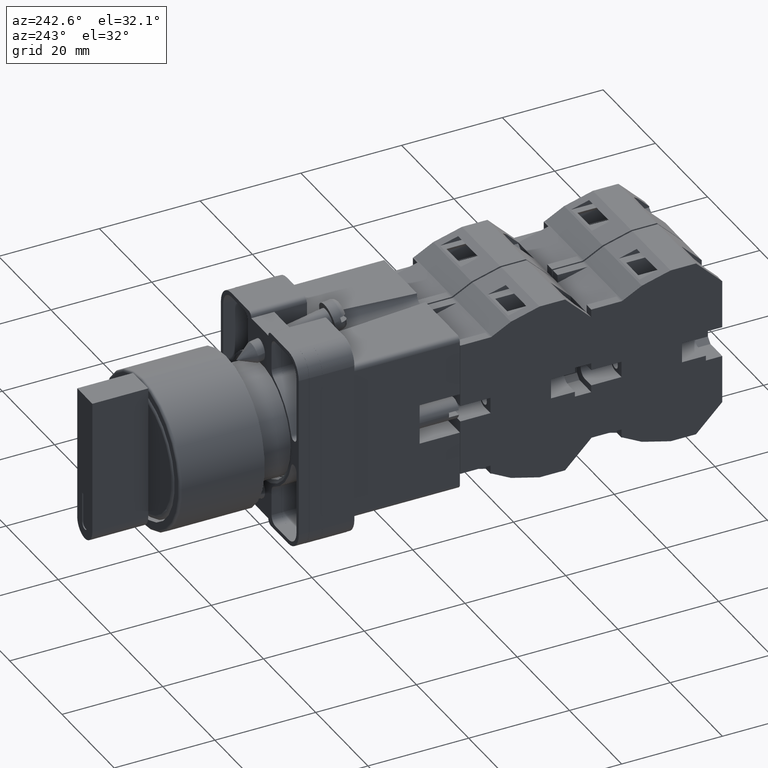
[diagram: clean part render]
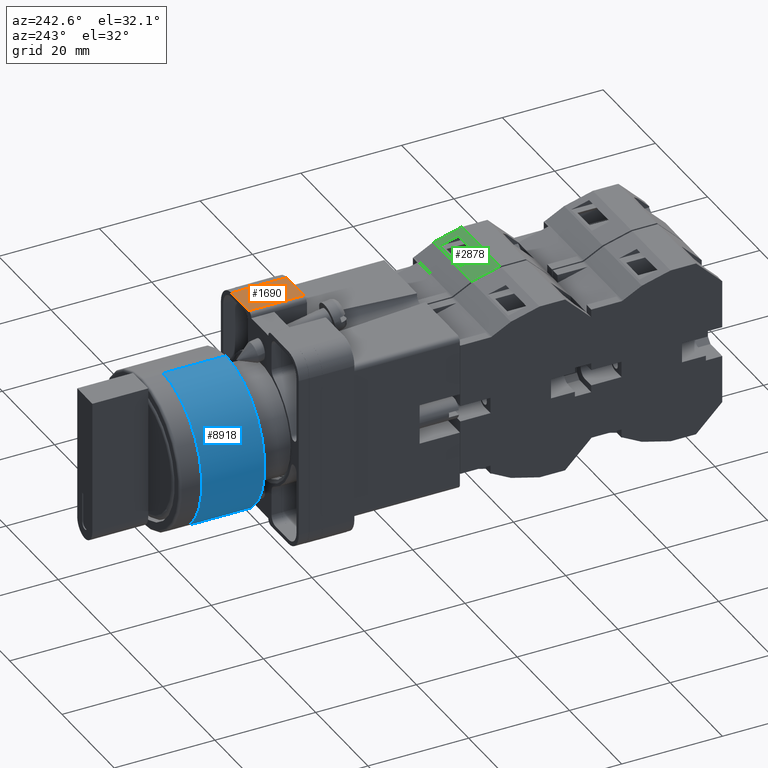
[diagram: same view with three faces highlighted in distinct colors, each labeled with its STEP entity id]
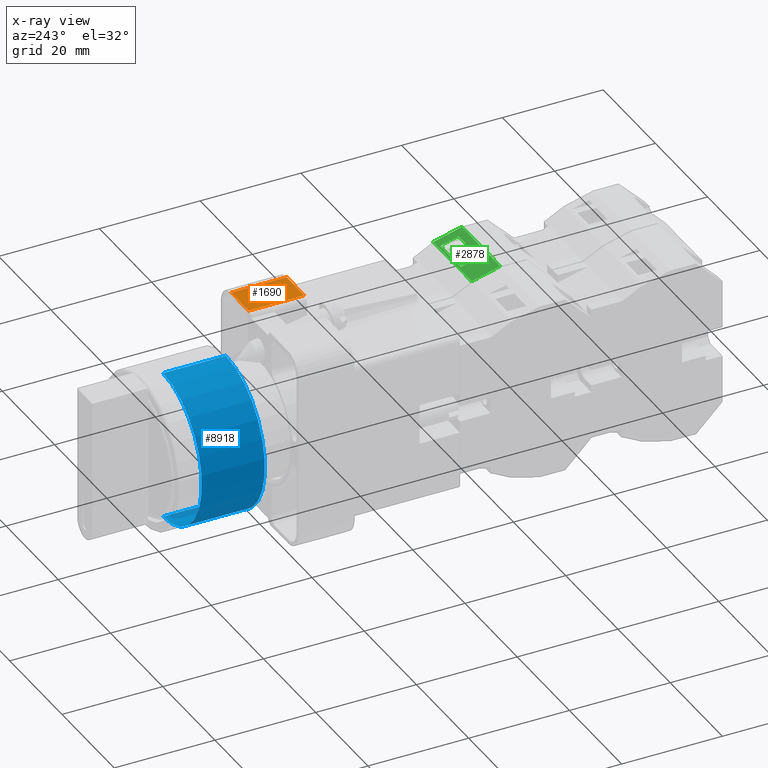
[diagram: x-ray of the same camera — body ghosted, the three highlighted faces saturated]
A machine part, auxiliary view with three faces highlighted in distinct colors.
The next image is the same camera in x-ray (body ghosted, the three faces saturated) — at least one of them is partly hidden behind the body in this view.
Their STEP definitions:

[orange] entity #1690 — the highlighted planar face has unit normal (0, 0, -1).
#143 = CARTESIAN_POINT ( 'NONE',  ( 0.4312471367406947600, -0.7873999999999993200, -0.4035433070866141200 ) ) ;
#153 = EDGE_CURVE ( 'NONE', #15002, #5637, #4546, .T. ) ;
#195 = LINE ( 'NONE', #5597, #14948 ) ;
#620 = DIRECTION ( 'NONE',  ( -1.000000000000000000, 0.0000000000000000000, 0.0000000000000000000 ) ) ;
#684 = CARTESIAN_POINT ( 'NONE',  ( 0.4291329999999932100, -0.7873999999999972100, -0.4350393700787401100 ) ) ;
#799 = DIRECTION ( 'NONE',  ( -0.0000000000000000000, -0.0000000000000000000, 1.000000000000000000 ) ) ;
#855 = VECTOR ( 'NONE', #4040, 39.37007874015748100 ) ;
#1024 = DIRECTION ( 'NONE',  ( 1.000000000000000000, 0.0000000000000000000, 0.0000000000000000000 ) ) ;
#1203 = ORIENTED_EDGE ( 'NONE', *, *, #153, .T. ) ;
#1320 = ORIENTED_EDGE ( 'NONE', *, *, #2529, .T. ) ;
#1690 = ADVANCED_FACE ( 'NONE', ( #11272 ), #3531, .F. ) ;
#1828 = DIRECTION ( 'NONE',  ( -0.0000000000000000000, -0.0000000000000000000, 1.000000000000000000 ) ) ;
#1859 = CARTESIAN_POINT ( 'NONE',  ( 0.0000000000000000000, -0.7873999999999993200, -0.08070866141732283000 ) ) ;
#2056 = EDGE_CURVE ( 'NONE', #16298, #15311, #2364, .T. ) ;
#2115 = CARTESIAN_POINT ( 'NONE',  ( 0.4291329999999997600, -0.7873999999999972100, -0.08070866141732283000 ) ) ;
#2364 = LINE ( 'NONE', #12404, #16654 ) ;
#2484 = ORIENTED_EDGE ( 'NONE', *, *, #17266, .F. ) ;
#2529 = EDGE_CURVE ( 'NONE', #17647, #14209, #3013, .T. ) ;
#2748 = DIRECTION ( 'NONE',  ( 0.0000000000000000000, 0.0000000000000000000, 1.000000000000000000 ) ) ;
#3013 = LINE ( 'NONE', #10140, #17277 ) ;
#3198 = CARTESIAN_POINT ( 'NONE',  ( 0.4306202253755368500, -0.7873999999999993200, -0.1830708661417322600 ) ) ;
#3510 = CARTESIAN_POINT ( 'NONE',  ( 0.4306202253755368500, -0.7873999999999993200, -0.1830708661417322600 ) ) ;
#3531 = PLANE ( 'NONE',  #13448 ) ;
#3800 = CARTESIAN_POINT ( 'NONE',  ( 0.1673224999999976000, -0.7873999999999972100, 0.0000000000000000000 ) ) ;
#4040 = DIRECTION ( 'NONE',  ( 1.000000000000000000, 0.0000000000000000000, 0.0000000000000000000 ) ) ;
#4095 = VECTOR ( 'NONE', #799, 39.37007874015748100 ) ;
#4426 = VERTEX_POINT ( 'NONE', #3510 ) ;
#4546 = LINE ( 'NONE', #684, #4095 ) ;
#4866 = DIRECTION ( 'NONE',  ( 0.0000000000000000000, 1.000000000000000000, -0.0000000000000000000 ) ) ;
#4972 = CARTESIAN_POINT ( 'NONE',  ( 0.4291329999999932100, -0.7873999999999972100, -0.4035433070866141200 ) ) ;
#5536 = CARTESIAN_POINT ( 'NONE',  ( 0.4291329999999997600, -0.7873999999999972100, -0.08070866141732283000 ) ) ;
#5597 = CARTESIAN_POINT ( 'NONE',  ( 0.0000000000000000000, -0.7873999999999993200, -0.4035433070866141200 ) ) ;
#5637 = VERTEX_POINT ( 'NONE', #4972 ) ;
#6077 = ORIENTED_EDGE ( 'NONE', *, *, #11263, .T. ) ;
#6209 = CARTESIAN_POINT ( 'NONE',  ( 0.4291329999999997600, -0.7873999999999972100, 0.0000000000000000000 ) ) ;
#6247 = EDGE_CURVE ( 'NONE', #9309, #7745, #14173, .T. ) ;
#6530 = VECTOR ( 'NONE', #15713, 39.37007874015748100 ) ;
#6819 = VECTOR ( 'NONE', #2748, 39.37007874015748100 ) ;
#7068 = ORIENTED_EDGE ( 'NONE', *, *, #2056, .T. ) ;
#7745 = VERTEX_POINT ( 'NONE', #3800 ) ;
#8034 = EDGE_CURVE ( 'NONE', #16298, #16142, #14309, .T. ) ;
#8106 = CARTESIAN_POINT ( 'NONE',  ( 0.4312471367406947600, -0.7873999999999993200, -0.1830708661417322600 ) ) ;
#8265 = LINE ( 'NONE', #13688, #855 ) ;
#8532 = ORIENTED_EDGE ( 'NONE', *, *, #12149, .T. ) ;
#8717 = VECTOR ( 'NONE', #1024, 39.37007874015748100 ) ;
#8982 = LINE ( 'NONE', #3198, #15887 ) ;
#9309 = VERTEX_POINT ( 'NONE', #15659 ) ;
#10140 = CARTESIAN_POINT ( 'NONE',  ( 0.4312471367406947600, -0.7873999999999993200, -0.4035433070866141200 ) ) ;
#10779 = ORIENTED_EDGE ( 'NONE', *, *, #6247, .F. ) ;
#11263 = EDGE_CURVE ( 'NONE', #15311, #7745, #17769, .T. ) ;
#11272 = FACE_OUTER_BOUND ( 'NONE', #17106, .T. ) ;
#11467 = DIRECTION ( 'NONE',  ( -0.0000000000000000000, -0.0000000000000000000, 1.000000000000000000 ) ) ;
#12149 = EDGE_CURVE ( 'NONE', #4426, #16142, #8982, .T. ) ;
#12389 = CARTESIAN_POINT ( 'NONE',  ( 0.1673224999999976000, -0.7873999999999972100, -0.08070866141732283000 ) ) ;
#12404 = CARTESIAN_POINT ( 'NONE',  ( 0.4291329999999997600, -0.7873999999999972100, -0.08070866141732283000 ) ) ;
#13382 = ORIENTED_EDGE ( 'NONE', *, *, #13389, .T. ) ;
#13389 = EDGE_CURVE ( 'NONE', #5637, #17647, #195, .T. ) ;
#13448 = AXIS2_PLACEMENT_3D ( 'NONE', #2115, #4866, #16344 ) ;
#13505 = CARTESIAN_POINT ( 'NONE',  ( 0.0000000000000000000, -0.7873999999999993200, -0.1830708661417322600 ) ) ;
#13688 = CARTESIAN_POINT ( 'NONE',  ( 0.1673224999999976000, -0.7873999999999972100, -0.4350393700787401100 ) ) ;
#13689 = DIRECTION ( 'NONE',  ( 0.0000000000000000000, 0.0000000000000000000, 1.000000000000000000 ) ) ;
#14100 = VECTOR ( 'NONE', #620, 39.37007874015748100 ) ;
#14173 = LINE ( 'NONE', #12389, #6819 ) ;
#14209 = VERTEX_POINT ( 'NONE', #8106 ) ;
#14309 = LINE ( 'NONE', #1859, #6530 ) ;
#14319 = ORIENTED_EDGE ( 'NONE', *, *, #17337, .T. ) ;
#14397 = CARTESIAN_POINT ( 'NONE',  ( 0.4291329999999997600, -0.7873999999999972100, 0.0000000000000000000 ) ) ;
#14948 = VECTOR ( 'NONE', #16644, 39.37007874015748100 ) ;
#14992 = CARTESIAN_POINT ( 'NONE',  ( 0.4291329999999932100, -0.7873999999999972100, -0.4350393700787401100 ) ) ;
#15002 = VERTEX_POINT ( 'NONE', #14992 ) ;
#15311 = VERTEX_POINT ( 'NONE', #14397 ) ;
#15659 = CARTESIAN_POINT ( 'NONE',  ( 0.1673224999999976000, -0.7873999999999961000, -0.4350393700787401100 ) ) ;
#15713 = DIRECTION ( 'NONE',  ( 1.000000000000000000, 0.0000000000000000000, 0.0000000000000000000 ) ) ;
#15887 = VECTOR ( 'NONE', #11467, 39.37007874015748100 ) ;
#16051 = LINE ( 'NONE', #13505, #8717 ) ;
#16142 = VERTEX_POINT ( 'NONE', #17613 ) ;
#16298 = VERTEX_POINT ( 'NONE', #5536 ) ;
#16344 = DIRECTION ( 'NONE',  ( 0.0000000000000000000, 0.0000000000000000000, 1.000000000000000000 ) ) ;
#16644 = DIRECTION ( 'NONE',  ( 1.000000000000000000, 0.0000000000000000000, 0.0000000000000000000 ) ) ;
#16654 = VECTOR ( 'NONE', #13689, 39.37007874015748100 ) ;
#17106 = EDGE_LOOP ( 'NONE', ( #6077, #10779, #14319, #1203, #13382, #1320, #2484, #8532, #17483, #7068 ) ) ;
#17266 = EDGE_CURVE ( 'NONE', #4426, #14209, #16051, .T. ) ;
#17277 = VECTOR ( 'NONE', #1828, 39.37007874015748100 ) ;
#17337 = EDGE_CURVE ( 'NONE', #9309, #15002, #8265, .T. ) ;
#17483 = ORIENTED_EDGE ( 'NONE', *, *, #8034, .F. ) ;
#17613 = CARTESIAN_POINT ( 'NONE',  ( 0.4306202253755368500, -0.7873999999999993200, -0.08070866141732283000 ) ) ;
#17647 = VERTEX_POINT ( 'NONE', #143 ) ;
#17769 = LINE ( 'NONE', #6209, #14100 ) ;

[blue] entity #8918 — the highlighted cylindrical surface (partial cylindrical patch) has radius 14.925 mm, axis along (-0, -1, -0).
#420 = VECTOR ( 'NONE', #10999, 39.37007874015748100 ) ;
#498 = ORIENTED_EDGE ( 'NONE', *, *, #17757, .T. ) ;
#596 = CARTESIAN_POINT ( 'NONE',  ( 0.0000000000000000000, 0.9409448818897640000, -0.5875984251968504600 ) ) ;
#856 = LINE ( 'NONE', #13606, #420 ) ;
#951 = ORIENTED_EDGE ( 'NONE', *, *, #12120, .T. ) ;
#1222 = ORIENTED_EDGE ( 'NONE', *, *, #6708, .F. ) ;
#1227 = EDGE_CURVE ( 'NONE', #15399, #12038, #856, .T. ) ;
#1766 = AXIS2_PLACEMENT_3D ( 'NONE', #5934, #15576, #7325 ) ;
#2482 = CARTESIAN_POINT ( 'NONE',  ( 7.196005306013484500E-017, 3.673790347906964000, 0.5875984251968504600 ) ) ;
#3693 = CIRCLE ( 'NONE', #7637, 0.5875984251968504600 ) ;
#5274 = DIRECTION ( 'NONE',  ( -0.0000000000000000000, -1.000000000000000000, -0.0000000000000000000 ) ) ;
#5493 = LINE ( 'NONE', #2482, #16095 ) ;
#5739 = CIRCLE ( 'NONE', #1766, 0.5875984251968504600 ) ;
#5934 = CARTESIAN_POINT ( 'NONE',  ( 0.0000000000000000000, 0.9409448818897640000, 0.0000000000000000000 ) ) ;
#6092 = DIRECTION ( 'NONE',  ( 0.0000000000000000000, 1.000000000000000000, 0.0000000000000000000 ) ) ;
#6326 = ORIENTED_EDGE ( 'NONE', *, *, #1227, .T. ) ;
#6632 = CYLINDRICAL_SURFACE ( 'NONE', #12340, 0.5875984251968504600 ) ;
#6708 = EDGE_CURVE ( 'NONE', #8851, #11276, #5493, .T. ) ;
#7059 = FACE_OUTER_BOUND ( 'NONE', #10789, .T. ) ;
#7325 = DIRECTION ( 'NONE',  ( 0.0000000000000000000, 0.0000000000000000000, -1.000000000000000000 ) ) ;
#7637 = AXIS2_PLACEMENT_3D ( 'NONE', #14362, #6092, #15754 ) ;
#8529 = CARTESIAN_POINT ( 'NONE',  ( 0.0000000000000000000, 0.4484251968503937300, -0.5875984251968504600 ) ) ;
#8851 = VERTEX_POINT ( 'NONE', #11617 ) ;
#8918 = ADVANCED_FACE ( 'NONE', ( #7059 ), #6632, .T. ) ;
#10316 = CARTESIAN_POINT ( 'NONE',  ( 7.196005306013484500E-017, 0.4484251968503937300, 0.5875984251968504600 ) ) ;
#10490 = CARTESIAN_POINT ( 'NONE',  ( 0.0000000000000000000, 3.673790347906964000, 0.0000000000000000000 ) ) ;
#10789 = EDGE_LOOP ( 'NONE', ( #1222, #951, #6326, #498 ) ) ;
#10999 = DIRECTION ( 'NONE',  ( -0.0000000000000000000, -1.000000000000000000, -0.0000000000000000000 ) ) ;
#11276 = VERTEX_POINT ( 'NONE', #10316 ) ;
#11617 = CARTESIAN_POINT ( 'NONE',  ( 7.196005306013484500E-017, 0.9409448818897640000, 0.5875984251968504600 ) ) ;
#11836 = DIRECTION ( 'NONE',  ( -0.0000000000000000000, -1.000000000000000000, -0.0000000000000000000 ) ) ;
#12038 = VERTEX_POINT ( 'NONE', #8529 ) ;
#12120 = EDGE_CURVE ( 'NONE', #8851, #15399, #5739, .T. ) ;
#12340 = AXIS2_PLACEMENT_3D ( 'NONE', #10490, #11836, #14592 ) ;
#13606 = CARTESIAN_POINT ( 'NONE',  ( 0.0000000000000000000, 3.673790347906964000, -0.5875984251968504600 ) ) ;
#14362 = CARTESIAN_POINT ( 'NONE',  ( 0.0000000000000000000, 0.4484251968503937300, 0.0000000000000000000 ) ) ;
#14592 = DIRECTION ( 'NONE',  ( 0.0000000000000000000, 0.0000000000000000000, -1.000000000000000000 ) ) ;
#15399 = VERTEX_POINT ( 'NONE', #596 ) ;
#15576 = DIRECTION ( 'NONE',  ( 0.0000000000000000000, -1.000000000000000000, 0.0000000000000000000 ) ) ;
#15754 = DIRECTION ( 'NONE',  ( 0.0000000000000000000, 0.0000000000000000000, 1.000000000000000000 ) ) ;
#16095 = VECTOR ( 'NONE', #5274, 39.37007874015748100 ) ;
#17757 = EDGE_CURVE ( 'NONE', #12038, #11276, #3693, .T. ) ;

[green] entity #2878 — the highlighted planar face has unit normal (0, -0.2588, -0.9659).
#207 = VECTOR ( 'NONE', #1409, 39.37007874015748100 ) ;
#462 = LINE ( 'NONE', #598, #7463 ) ;
#598 = CARTESIAN_POINT ( 'NONE',  ( 0.1889763779527539600, -0.4977118570381174900, 0.1333614901567568600 ) ) ;
#900 = CARTESIAN_POINT ( 'NONE',  ( -0.3188976377952755800, -0.6995288218689645900, -0.6198296764213121500 ) ) ;
#978 = EDGE_CURVE ( 'NONE', #14622, #8245, #11730, .T. ) ;
#998 = ORIENTED_EDGE ( 'NONE', *, *, #3239, .F. ) ;
#1409 = DIRECTION ( 'NONE',  ( 1.000000000000000000, 0.0000000000000000000, 0.0000000000000000000 ) ) ;
#1698 = ORIENTED_EDGE ( 'NONE', *, *, #3670, .T. ) ;
#2017 = LINE ( 'NONE', #7793, #8971 ) ;
#2028 = CARTESIAN_POINT ( 'NONE',  ( -0.3188976377952755800, -0.6995288218689645900, -0.6198296764213121500 ) ) ;
#2199 = LINE ( 'NONE', #12456, #9150 ) ;
#2243 = DIRECTION ( 'NONE',  ( 0.0000000000000000000, 0.2588190451025187400, 0.9659258262890687600 ) ) ;
#2311 = DIRECTION ( 'NONE',  ( -1.000000000000000000, 0.0000000000000000000, 0.0000000000000000000 ) ) ;
#2350 = CARTESIAN_POINT ( 'NONE',  ( 0.1889763779527539600, -0.6817378047480787700, -0.5534326966078378900 ) ) ;
#2878 = ADVANCED_FACE ( 'NONE', ( #2996, #14020 ), #5525, .F. ) ;
#2996 = FACE_BOUND ( 'NONE', #13515, .T. ) ;
#3239 = EDGE_CURVE ( 'NONE', #11728, #5192, #17192, .T. ) ;
#3670 = EDGE_CURVE ( 'NONE', #6579, #5226, #2017, .T. ) ;
#3944 = VERTEX_POINT ( 'NONE', #8517 ) ;
#4024 = CARTESIAN_POINT ( 'NONE',  ( -0.1220472440944900500, -0.6439905325434142100, -0.4125579588928961500 ) ) ;
#4204 = DIRECTION ( 'NONE',  ( 1.000000000000000000, 0.0000000000000000000, 0.0000000000000000000 ) ) ;
#4268 = CARTESIAN_POINT ( 'NONE',  ( -0.3188976377952755800, -0.6393838401749258900, -0.3953655489188578900 ) ) ;
#4346 = LINE ( 'NONE', #16043, #7604 ) ;
#5192 = VERTEX_POINT ( 'NONE', #17724 ) ;
#5226 = VERTEX_POINT ( 'NONE', #4024 ) ;
#5270 = AXIS2_PLACEMENT_3D ( 'NONE', #9641, #6921, #16587 ) ;
#5412 = VECTOR ( 'NONE', #2311, 39.37007874015748100 ) ;
#5525 = PLANE ( 'NONE',  #5270 ) ;
#6316 = CARTESIAN_POINT ( 'NONE',  ( -0.1220472440944900500, -0.6817378047480795500, -0.5534326966078431100 ) ) ;
#6511 = CARTESIAN_POINT ( 'NONE',  ( -0.3188976377952755800, -0.6817378047480787700, -0.5534326966078375600 ) ) ;
#6579 = VERTEX_POINT ( 'NONE', #6316 ) ;
#6756 = ORIENTED_EDGE ( 'NONE', *, *, #17942, .F. ) ;
#6921 = DIRECTION ( 'NONE',  ( 0.0000000000000000000, 0.9659258262890688700, -0.2588190451025188000 ) ) ;
#7463 = VECTOR ( 'NONE', #7575, 39.37007874015748900 ) ;
#7575 = DIRECTION ( 'NONE',  ( 0.0000000000000000000, -0.2588190451025187400, -0.9659258262890687600 ) ) ;
#7604 = VECTOR ( 'NONE', #2243, 39.37007874015748900 ) ;
#7793 = CARTESIAN_POINT ( 'NONE',  ( -0.1220472440944900500, -0.4977118570381174900, 0.1333614901567568600 ) ) ;
#8245 = VERTEX_POINT ( 'NONE', #14718 ) ;
#8385 = EDGE_CURVE ( 'NONE', #11420, #6579, #12295, .T. ) ;
#8517 = CARTESIAN_POINT ( 'NONE',  ( 0.1889763779527539600, -0.6439905325434151000, -0.4125579588929025900 ) ) ;
#8784 = CARTESIAN_POINT ( 'NONE',  ( -0.3188976377952755800, -0.6393838401749258900, -0.3953655489188578900 ) ) ;
#8971 = VECTOR ( 'NONE', #16066, 39.37007874015748900 ) ;
#9150 = VECTOR ( 'NONE', #13874, 39.37007874015748900 ) ;
#9641 = CARTESIAN_POINT ( 'NONE',  ( -0.3188976377952755800, -0.4977118570381174900, 0.1333614901567568600 ) ) ;
#10293 = VECTOR ( 'NONE', #4204, 39.37007874015748100 ) ;
#10837 = CARTESIAN_POINT ( 'NONE',  ( -0.3188976377952755800, -0.6439905325434142100, -0.4125579588928961500 ) ) ;
#11010 = EDGE_CURVE ( 'NONE', #8245, #5192, #2199, .T. ) ;
#11420 = VERTEX_POINT ( 'NONE', #2350 ) ;
#11618 = ORIENTED_EDGE ( 'NONE', *, *, #11010, .T. ) ;
#11642 = EDGE_LOOP ( 'NONE', ( #16449, #11618, #998, #6756 ) ) ;
#11728 = VERTEX_POINT ( 'NONE', #8784 ) ;
#11730 = LINE ( 'NONE', #2028, #207 ) ;
#12093 = ORIENTED_EDGE ( 'NONE', *, *, #8385, .T. ) ;
#12181 = VECTOR ( 'NONE', #17706, 39.37007874015748100 ) ;
#12295 = LINE ( 'NONE', #6511, #5412 ) ;
#12456 = CARTESIAN_POINT ( 'NONE',  ( 0.2598425196850393500, -0.4977118570381174900, 0.1333614901567568600 ) ) ;
#12492 = EDGE_CURVE ( 'NONE', #3944, #11420, #462, .T. ) ;
#12635 = ORIENTED_EDGE ( 'NONE', *, *, #12492, .T. ) ;
#13482 = LINE ( 'NONE', #10837, #12181 ) ;
#13515 = EDGE_LOOP ( 'NONE', ( #12635, #12093, #1698, #17460 ) ) ;
#13874 = DIRECTION ( 'NONE',  ( 0.0000000000000000000, 0.2588190451025187400, 0.9659258262890687600 ) ) ;
#14020 = FACE_OUTER_BOUND ( 'NONE', #11642, .T. ) ;
#14622 = VERTEX_POINT ( 'NONE', #900 ) ;
#14718 = CARTESIAN_POINT ( 'NONE',  ( 0.2598425196850393500, -0.6995288218689645900, -0.6198296764213121500 ) ) ;
#14980 = EDGE_CURVE ( 'NONE', #5226, #3944, #13482, .T. ) ;
#16043 = CARTESIAN_POINT ( 'NONE',  ( -0.3188976377952755800, -0.4977118570381174900, 0.1333614901567568600 ) ) ;
#16066 = DIRECTION ( 'NONE',  ( 0.0000000000000000000, 0.2588190451025187400, 0.9659258262890687600 ) ) ;
#16449 = ORIENTED_EDGE ( 'NONE', *, *, #978, .T. ) ;
#16587 = DIRECTION ( 'NONE',  ( 0.0000000000000000000, 0.2588190451025187400, 0.9659258262890687600 ) ) ;
#17192 = LINE ( 'NONE', #4268, #10293 ) ;
#17460 = ORIENTED_EDGE ( 'NONE', *, *, #14980, .T. ) ;
#17706 = DIRECTION ( 'NONE',  ( 1.000000000000000000, -0.0000000000000000000, 0.0000000000000000000 ) ) ;
#17724 = CARTESIAN_POINT ( 'NONE',  ( 0.2598425196850393500, -0.6393838401749258900, -0.3953655489188578900 ) ) ;
#17942 = EDGE_CURVE ( 'NONE', #14622, #11728, #4346, .T. ) ;